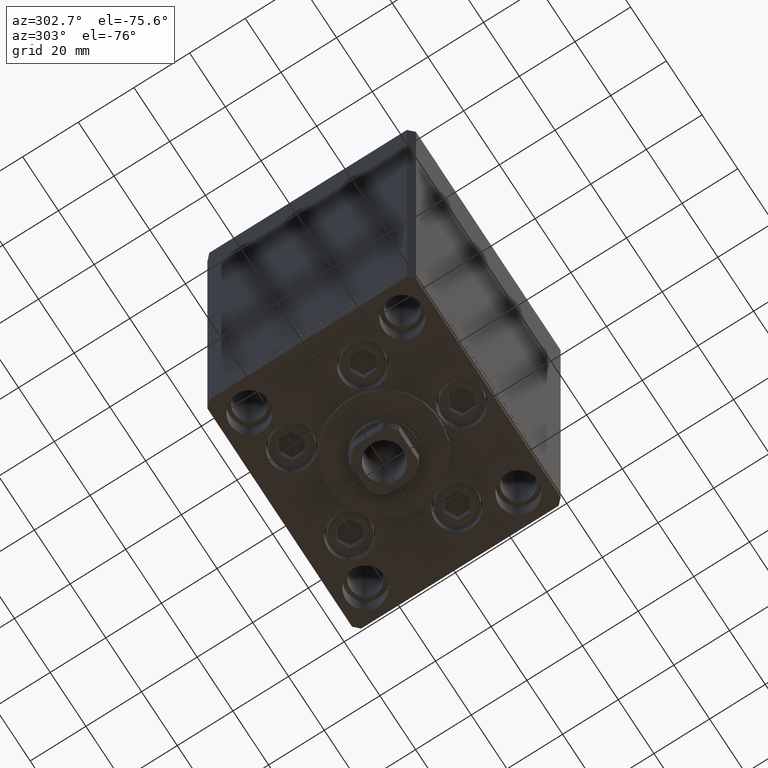
[diagram: clean part render]
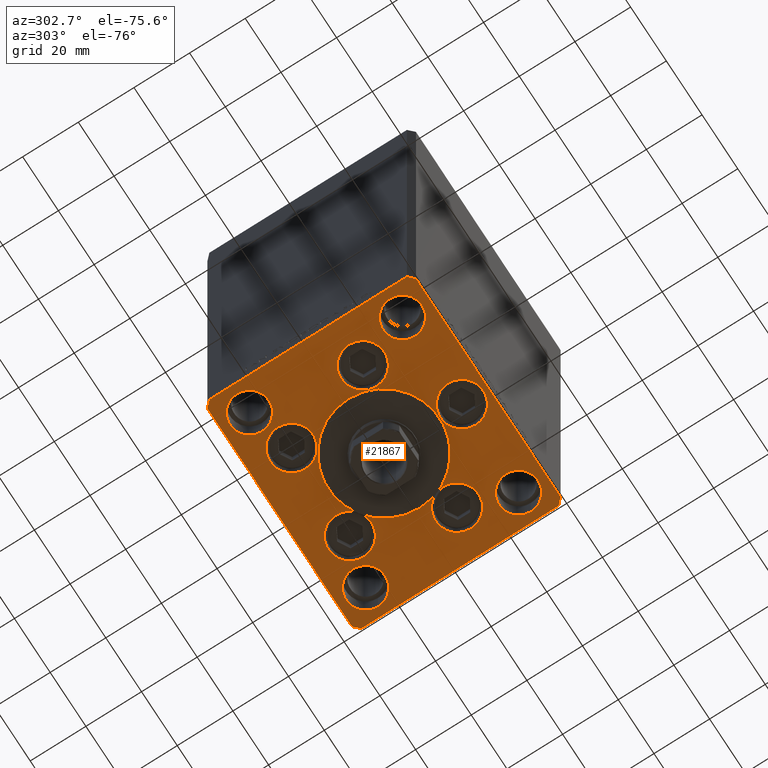
[diagram: same view with one face highlighted and labeled with its STEP entity id]
A machine part, auxiliary view. The second image highlights one B-rep face of the part: STEP entity #21867.
In plain terms, the highlighted planar face has unit normal (0, 0, -1).
Its self-contained STEP definition (entity closure, byte-faithful):
#103 = DIRECTION ( 'NONE',  ( 0.000000000000000000, 0.000000000000000000, 1.000000000000000000 ) ) ;
#386 = ORIENTED_EDGE ( 'NONE', *, *, #36667, .T. ) ;
#412 = CARTESIAN_POINT ( 'NONE',  ( -32.50000000000000000, -27.50000000000000355, 0.000000000000000000 ) ) ;
#703 = VERTEX_POINT ( 'NONE', #33173 ) ;
#747 = FACE_BOUND ( 'NONE', #41973, .T. ) ;
#998 = CARTESIAN_POINT ( 'NONE',  ( 0.000000000000000000, 0.000000000000000000, 0.000000000000000000 ) ) ;
#1865 = CARTESIAN_POINT ( 'NONE',  ( 40.50000000000001421, -37.49999999999992184, 0.000000000000000000 ) ) ;
#2924 = DIRECTION ( 'NONE',  ( 0.000000000000000000, 0.000000000000000000, 1.000000000000000000 ) ) ;
#2979 = DIRECTION ( 'NONE',  ( 0.000000000000000000, 0.000000000000000000, 1.000000000000000000 ) ) ;
#3377 = ORIENTED_EDGE ( 'NONE', *, *, #39702, .F. ) ;
#3508 = CARTESIAN_POINT ( 'NONE',  ( 25.50000000000000355, 27.49999999999999645, 0.000000000000000000 ) ) ;
#3516 = EDGE_LOOP ( 'NONE', ( #47037, #14021 ) ) ;
#3780 = EDGE_CURVE ( 'NONE', #25718, #703, #20379, .T. ) ;
#3985 = DIRECTION ( 'NONE',  ( 0.000000000000000000, 0.000000000000000000, 1.000000000000000000 ) ) ;
#4073 = AXIS2_PLACEMENT_3D ( 'NONE', #40962, #13769, #26114 ) ;
#4242 = DIRECTION ( 'NONE',  ( 1.000000000000000000, 0.000000000000000000, 0.000000000000000000 ) ) ;
#4563 = ORIENTED_EDGE ( 'NONE', *, *, #8620, .F. ) ;
#4695 = DIRECTION ( 'NONE',  ( -0.000000000000000000, 0.000000000000000000, 1.000000000000000000 ) ) ;
#4829 = DIRECTION ( 'NONE',  ( 1.000000000000000000, 0.000000000000000000, 0.000000000000000000 ) ) ;
#4847 = DIRECTION ( 'NONE',  ( 1.000000000000000000, 0.000000000000000000, 0.000000000000000000 ) ) ;
#5054 = CIRCLE ( 'NONE', #30343, 7.750000000000000000 ) ;
#5155 = VECTOR ( 'NONE', #19946, 1000.000000000000000 ) ;
#5263 = CARTESIAN_POINT ( 'NONE',  ( 32.50000000000000000, 27.49999999999999645, 0.000000000000000000 ) ) ;
#5791 = DIRECTION ( 'NONE',  ( 1.000000000000000000, 0.000000000000000000, 0.000000000000000000 ) ) ;
#6054 = VERTEX_POINT ( 'NONE', #3508 ) ;
#6270 = EDGE_CURVE ( 'NONE', #16103, #30489, #36512, .T. ) ;
#6557 = EDGE_LOOP ( 'NONE', ( #13039, #33616 ) ) ;
#6805 = VERTEX_POINT ( 'NONE', #38533 ) ;
#7273 = CARTESIAN_POINT ( 'NONE',  ( 42.50000000000001421, 35.50000000000002132, 0.000000000000000000 ) ) ;
#7840 = CARTESIAN_POINT ( 'NONE',  ( 25.50000000000000355, -27.50000000000000355, 0.000000000000000000 ) ) ;
#7870 = ORIENTED_EDGE ( 'NONE', *, *, #23478, .F. ) ;
#8257 = VERTEX_POINT ( 'NONE', #40187 ) ;
#8268 = AXIS2_PLACEMENT_3D ( 'NONE', #40334, #2979, #37114 ) ;
#8423 = FACE_BOUND ( 'NONE', #13438, .T. ) ;
#8592 = EDGE_LOOP ( 'NONE', ( #16753, #17067 ) ) ;
#8600 = CARTESIAN_POINT ( 'NONE',  ( -25.50000000000000355, -27.50000000000000355, 0.000000000000000000 ) ) ;
#8620 = EDGE_CURVE ( 'NONE', #30489, #16103, #31775, .T. ) ;
#8791 = DIRECTION ( 'NONE',  ( 0.000000000000000000, 0.000000000000000000, 1.000000000000000000 ) ) ;
#8896 = EDGE_CURVE ( 'NONE', #35273, #26124, #43545, .T. ) ;
#8910 = FACE_BOUND ( 'NONE', #44845, .T. ) ;
#9289 = ORIENTED_EDGE ( 'NONE', *, *, #32702, .F. ) ;
#9489 = ORIENTED_EDGE ( 'NONE', *, *, #45274, .F. ) ;
#9556 = VERTEX_POINT ( 'NONE', #14666 ) ;
#9562 = CARTESIAN_POINT ( 'NONE',  ( 0.000000000000000000, -28.00000000000000000, 0.000000000000000000 ) ) ;
#9773 = LINE ( 'NONE', #1865, #39296 ) ;
#10086 = EDGE_LOOP ( 'NONE', ( #7870, #9289 ) ) ;
#10348 = CARTESIAN_POINT ( 'NONE',  ( 16.32291334290544071, 22.74999999999999289, 0.000000000000000000 ) ) ;
#10361 = VERTEX_POINT ( 'NONE', #15281 ) ;
#10518 = CARTESIAN_POINT ( 'NONE',  ( -26.39865316429777664, -9.333333333333330373, 0.000000000000000000 ) ) ;
#10703 = ORIENTED_EDGE ( 'NONE', *, *, #34741, .F. ) ;
#11047 = EDGE_LOOP ( 'NONE', ( #12650, #29749, #386, #21279, #28253, #30860, #33496, #48407 ) ) ;
#11092 = AXIS2_PLACEMENT_3D ( 'NONE', #16916, #16666, #5791 ) ;
#11352 = CARTESIAN_POINT ( 'NONE',  ( -42.50000000000000711, 35.50000000000000000, 0.000000000000000000 ) ) ;
#11353 = VERTEX_POINT ( 'NONE', #39012 ) ;
#11699 = EDGE_CURVE ( 'NONE', #27220, #24272, #41108, .T. ) ;
#11788 = CARTESIAN_POINT ( 'NONE',  ( 18.64865316429777664, -9.333333333333328596, 0.000000000000000000 ) ) ;
#11900 = CIRCLE ( 'NONE', #39554, 7.750000000000000000 ) ;
#12321 = DIRECTION ( 'NONE',  ( 1.000000000000000000, 0.000000000000000000, 0.000000000000000000 ) ) ;
#12558 = ORIENTED_EDGE ( 'NONE', *, *, #42595, .F. ) ;
#12650 = ORIENTED_EDGE ( 'NONE', *, *, #3780, .T. ) ;
#13039 = ORIENTED_EDGE ( 'NONE', *, *, #13921, .F. ) ;
#13333 = EDGE_CURVE ( 'NONE', #42582, #6805, #26848, .T. ) ;
#13438 = EDGE_LOOP ( 'NONE', ( #9489, #3377 ) ) ;
#13488 = AXIS2_PLACEMENT_3D ( 'NONE', #10348, #2924, #41754 ) ;
#13631 = CARTESIAN_POINT ( 'NONE',  ( -18.64865316429777664, -9.333333333333330373, 0.000000000000000000 ) ) ;
#13664 = DIRECTION ( 'NONE',  ( 0.000000000000000000, 0.000000000000000000, 1.000000000000000000 ) ) ;
#13769 = DIRECTION ( 'NONE',  ( 0.000000000000000000, 0.000000000000000000, 1.000000000000000000 ) ) ;
#13921 = EDGE_CURVE ( 'NONE', #24272, #27220, #39479, .T. ) ;
#13930 = VERTEX_POINT ( 'NONE', #18832 ) ;
#14021 = ORIENTED_EDGE ( 'NONE', *, *, #15079, .F. ) ;
#14530 = DIRECTION ( 'NONE',  ( 0.000000000000000000, 0.000000000000000000, 1.000000000000000000 ) ) ;
#14538 = LINE ( 'NONE', #41244, #17394 ) ;
#14553 = AXIS2_PLACEMENT_3D ( 'NONE', #29508, #25553, #44613 ) ;
#14584 = CARTESIAN_POINT ( 'NONE',  ( -16.32291334290544071, 22.74999999999999289, 0.000000000000000000 ) ) ;
#14666 = CARTESIAN_POINT ( 'NONE',  ( -34.14865316429777664, -9.333333333333328596, 0.000000000000000000 ) ) ;
#14811 = DIRECTION ( 'NONE',  ( 9.773090005503134168E-17, -1.000000000000000000, 0.000000000000000000 ) ) ;
#15079 = EDGE_CURVE ( 'NONE', #8257, #15090, #26881, .T. ) ;
#15090 = VERTEX_POINT ( 'NONE', #8600 ) ;
#15281 = CARTESIAN_POINT ( 'NONE',  ( 7.750000000000000000, -28.00000000000000000, 0.000000000000000000 ) ) ;
#15306 = LINE ( 'NONE', #11352, #22706 ) ;
#15332 = EDGE_CURVE ( 'NONE', #13930, #10361, #34782, .T. ) ;
#15409 = CARTESIAN_POINT ( 'NONE',  ( -42.50000000000000000, -35.50000000000004263, 0.000000000000000000 ) ) ;
#15424 = EDGE_CURVE ( 'NONE', #47428, #43186, #38767, .T. ) ;
#15505 = CARTESIAN_POINT ( 'NONE',  ( 40.50000000000001421, -37.49999999999992184, 0.000000000000000000 ) ) ;
#15828 = FACE_BOUND ( 'NONE', #27879, .T. ) ;
#16103 = VERTEX_POINT ( 'NONE', #36941 ) ;
#16115 = EDGE_CURVE ( 'NONE', #27305, #32666, #11900, .T. ) ;
#16320 = FACE_BOUND ( 'NONE', #3516, .T. ) ;
#16666 = DIRECTION ( 'NONE',  ( 0.000000000000000000, 0.000000000000000000, 1.000000000000000000 ) ) ;
#16753 = ORIENTED_EDGE ( 'NONE', *, *, #28716, .F. ) ;
#16916 = CARTESIAN_POINT ( 'NONE',  ( 32.50000000000000000, -27.50000000000000355, 0.000000000000000000 ) ) ;
#17067 = ORIENTED_EDGE ( 'NONE', *, *, #40223, .F. ) ;
#17182 = DIRECTION ( 'NONE',  ( 0.7071067811865474617, 0.7071067811865474617, 0.000000000000000000 ) ) ;
#17394 = VECTOR ( 'NONE', #22197, 1000.000000000000000 ) ;
#17479 = CARTESIAN_POINT ( 'NONE',  ( -25.50000000000000355, 27.50000000000000711, 0.000000000000000000 ) ) ;
#17958 = CARTESIAN_POINT ( 'NONE',  ( 20.00000000000000000, -4.489600305612522259E-15, 0.000000000000000000 ) ) ;
#18127 = CARTESIAN_POINT ( 'NONE',  ( 26.39865316429777664, -9.333333333333330373, 0.000000000000000000 ) ) ;
#18182 = AXIS2_PLACEMENT_3D ( 'NONE', #32083, #47189, #12321 ) ;
#18183 = CIRCLE ( 'NONE', #32417, 6.999999999999999112 ) ;
#18424 = LINE ( 'NONE', #29815, #21042 ) ;
#18463 = VECTOR ( 'NONE', #21892, 1000.000000000000000 ) ;
#18637 = CIRCLE ( 'NONE', #20217, 7.750000000000000000 ) ;
#18832 = CARTESIAN_POINT ( 'NONE',  ( -7.750000000000000000, -28.00000000000000000, 0.000000000000000000 ) ) ;
#18916 = DIRECTION ( 'NONE',  ( -1.000000000000000000, -4.283267841918041508E-16, 0.000000000000000000 ) ) ;
#18928 = AXIS2_PLACEMENT_3D ( 'NONE', #46648, #8791, #4829 ) ;
#19778 = DIRECTION ( 'NONE',  ( 1.000000000000000000, 0.000000000000000000, 0.000000000000000000 ) ) ;
#19946 = DIRECTION ( 'NONE',  ( 9.773090005503145261E-17, 1.000000000000000000, 0.000000000000000000 ) ) ;
#20027 = FACE_OUTER_BOUND ( 'NONE', #11047, .T. ) ;
#20217 = AXIS2_PLACEMENT_3D ( 'NONE', #41980, #22928, #4847 ) ;
#20379 = LINE ( 'NONE', #31774, #32479 ) ;
#20802 = VERTEX_POINT ( 'NONE', #13631 ) ;
#21042 = VECTOR ( 'NONE', #18916, 1000.000000000000000 ) ;
#21279 = ORIENTED_EDGE ( 'NONE', *, *, #30526, .T. ) ;
#21712 = DIRECTION ( 'NONE',  ( 1.000000000000000000, 0.000000000000000000, 0.000000000000000000 ) ) ;
#21716 = CARTESIAN_POINT ( 'NONE',  ( 34.14865316429777664, -9.333333333333330373, 0.000000000000000000 ) ) ;
#21867 = ADVANCED_FACE ( 'NONE', ( #15828, #34639, #8910, #747, #46038, #42326, #8423, #37867, #16320, #38594, #20027 ), #42567, .T. ) ;
#21892 = DIRECTION ( 'NONE',  ( 1.000000000000000000, 1.370645709413773283E-15, 0.000000000000000000 ) ) ;
#22055 = DIRECTION ( 'NONE',  ( 0.000000000000000000, 0.000000000000000000, 1.000000000000000000 ) ) ;
#22197 = DIRECTION ( 'NONE',  ( -0.7071067811865524577, 0.7071067811865426878, 0.000000000000000000 ) ) ;
#22439 = VERTEX_POINT ( 'NONE', #17479 ) ;
#22706 = VECTOR ( 'NONE', #14811, 1000.000000000000000 ) ;
#22928 = DIRECTION ( 'NONE',  ( 0.000000000000000000, 0.000000000000000000, 1.000000000000000000 ) ) ;
#23478 = EDGE_CURVE ( 'NONE', #20802, #9556, #5054, .T. ) ;
#23939 = ORIENTED_EDGE ( 'NONE', *, *, #15332, .F. ) ;
#24272 = VERTEX_POINT ( 'NONE', #28397 ) ;
#24656 = DIRECTION ( 'NONE',  ( 0.000000000000000000, 0.000000000000000000, 1.000000000000000000 ) ) ;
#24704 = CARTESIAN_POINT ( 'NONE',  ( 0.000000000000000000, -28.00000000000000000, 0.000000000000000000 ) ) ;
#25467 = AXIS2_PLACEMENT_3D ( 'NONE', #14584, #26697, #48961 ) ;
#25553 = DIRECTION ( 'NONE',  ( 0.000000000000000000, 0.000000000000000000, 1.000000000000000000 ) ) ;
#25718 = VERTEX_POINT ( 'NONE', #15409 ) ;
#25980 = CIRCLE ( 'NONE', #34665, 6.999999999999999112 ) ;
#26114 = DIRECTION ( 'NONE',  ( 1.000000000000000000, 0.000000000000000000, 0.000000000000000000 ) ) ;
#26124 = VERTEX_POINT ( 'NONE', #46939 ) ;
#26499 = EDGE_CURVE ( 'NONE', #15090, #8257, #47724, .T. ) ;
#26549 = DIRECTION ( 'NONE',  ( 1.000000000000000000, 0.000000000000000000, 0.000000000000000000 ) ) ;
#26697 = DIRECTION ( 'NONE',  ( 0.000000000000000000, 0.000000000000000000, 1.000000000000000000 ) ) ;
#26724 = VERTEX_POINT ( 'NONE', #7273 ) ;
#26738 = CARTESIAN_POINT ( 'NONE',  ( -40.50000000000000000, 37.49999999999997158, 0.000000000000000000 ) ) ;
#26848 = CIRCLE ( 'NONE', #18928, 20.00000000000000000 ) ;
#26881 = CIRCLE ( 'NONE', #18182, 6.999999999999999112 ) ;
#27190 = CIRCLE ( 'NONE', #14553, 6.999999999999999112 ) ;
#27220 = VERTEX_POINT ( 'NONE', #7840 ) ;
#27305 = VERTEX_POINT ( 'NONE', #11788 ) ;
#27868 = CARTESIAN_POINT ( 'NONE',  ( -24.07291334290544071, 22.74999999999999289, 0.000000000000000000 ) ) ;
#27879 = EDGE_LOOP ( 'NONE', ( #36039, #37646 ) ) ;
#28253 = ORIENTED_EDGE ( 'NONE', *, *, #41010, .T. ) ;
#28397 = CARTESIAN_POINT ( 'NONE',  ( 39.50000000000000000, -27.50000000000000355, 0.000000000000000000 ) ) ;
#28716 = EDGE_CURVE ( 'NONE', #22439, #41878, #27190, .T. ) ;
#29016 = EDGE_CURVE ( 'NONE', #6805, #42582, #35910, .T. ) ;
#29508 = CARTESIAN_POINT ( 'NONE',  ( -32.50000000000000000, 27.50000000000000711, 0.000000000000000000 ) ) ;
#29568 = CARTESIAN_POINT ( 'NONE',  ( -40.50000000000000711, -37.50000000000003553, 0.000000000000000000 ) ) ;
#29699 = DIRECTION ( 'NONE',  ( 0.000000000000000000, 0.000000000000000000, 1.000000000000000000 ) ) ;
#29749 = ORIENTED_EDGE ( 'NONE', *, *, #48041, .T. ) ;
#29815 = CARTESIAN_POINT ( 'NONE',  ( 40.50000000000000711, 37.50000000000000711, 0.000000000000000000 ) ) ;
#30174 = CARTESIAN_POINT ( 'NONE',  ( 40.50000000000000711, 37.50000000000000711, 0.000000000000000000 ) ) ;
#30343 = AXIS2_PLACEMENT_3D ( 'NONE', #10518, #44899, #40204 ) ;
#30472 = CARTESIAN_POINT ( 'NONE',  ( 32.50000000000000000, -27.50000000000000355, 0.000000000000000000 ) ) ;
#30489 = VERTEX_POINT ( 'NONE', #27868 ) ;
#30526 = EDGE_CURVE ( 'NONE', #45983, #26724, #43449, .T. ) ;
#30860 = ORIENTED_EDGE ( 'NONE', *, *, #33914, .T. ) ;
#31518 = CARTESIAN_POINT ( 'NONE',  ( 42.50000000000000711, -35.49999999999992895, 0.000000000000000000 ) ) ;
#31774 = CARTESIAN_POINT ( 'NONE',  ( -42.50000000000000000, -35.50000000000004263, 0.000000000000000000 ) ) ;
#31775 = CIRCLE ( 'NONE', #36509, 7.750000000000000000 ) ;
#32083 = CARTESIAN_POINT ( 'NONE',  ( -32.50000000000000000, -27.50000000000000355, 0.000000000000000000 ) ) ;
#32308 = EDGE_LOOP ( 'NONE', ( #36701, #4563 ) ) ;
#32416 = AXIS2_PLACEMENT_3D ( 'NONE', #24704, #47230, #47717 ) ;
#32417 = AXIS2_PLACEMENT_3D ( 'NONE', #40264, #14530, #21712 ) ;
#32479 = VECTOR ( 'NONE', #43398, 1000.000000000000000 ) ;
#32556 = CIRCLE ( 'NONE', #42849, 6.999999999999999112 ) ;
#32628 = AXIS2_PLACEMENT_3D ( 'NONE', #998, #4695, #19778 ) ;
#32666 = VERTEX_POINT ( 'NONE', #21716 ) ;
#32702 = EDGE_CURVE ( 'NONE', #9556, #20802, #18637, .T. ) ;
#32936 = AXIS2_PLACEMENT_3D ( 'NONE', #9562, #24656, #39747 ) ;
#33173 = CARTESIAN_POINT ( 'NONE',  ( -40.50000000000000711, -37.50000000000003553, 0.000000000000000000 ) ) ;
#33220 = DIRECTION ( 'NONE',  ( 0.000000000000000000, 0.000000000000000000, 1.000000000000000000 ) ) ;
#33304 = VERTEX_POINT ( 'NONE', #30174 ) ;
#33496 = ORIENTED_EDGE ( 'NONE', *, *, #8896, .T. ) ;
#33616 = ORIENTED_EDGE ( 'NONE', *, *, #11699, .F. ) ;
#33760 = LINE ( 'NONE', #29568, #18463 ) ;
#33914 = EDGE_CURVE ( 'NONE', #33304, #35273, #18424, .T. ) ;
#34140 = VECTOR ( 'NONE', #36606, 1000.000000000000000 ) ;
#34168 = DIRECTION ( 'NONE',  ( 1.000000000000000000, 0.000000000000000000, 0.000000000000000000 ) ) ;
#34639 = FACE_BOUND ( 'NONE', #32308, .T. ) ;
#34665 = AXIS2_PLACEMENT_3D ( 'NONE', #5263, #13664, #40133 ) ;
#34741 = EDGE_CURVE ( 'NONE', #10361, #13930, #47968, .T. ) ;
#34782 = CIRCLE ( 'NONE', #32416, 7.750000000000000000 ) ;
#35273 = VERTEX_POINT ( 'NONE', #26738 ) ;
#35405 = AXIS2_PLACEMENT_3D ( 'NONE', #37706, #103, #37213 ) ;
#35541 = EDGE_LOOP ( 'NONE', ( #10703, #23939 ) ) ;
#35910 = CIRCLE ( 'NONE', #8268, 20.00000000000000000 ) ;
#36039 = ORIENTED_EDGE ( 'NONE', *, *, #29016, .F. ) ;
#36263 = EDGE_CURVE ( 'NONE', #26124, #25718, #15306, .T. ) ;
#36346 = ORIENTED_EDGE ( 'NONE', *, *, #15424, .F. ) ;
#36509 = AXIS2_PLACEMENT_3D ( 'NONE', #41838, #3985, #34168 ) ;
#36512 = CIRCLE ( 'NONE', #25467, 7.750000000000000000 ) ;
#36606 = DIRECTION ( 'NONE',  ( -0.7071067811865536790, -0.7071067811865414665, 0.000000000000000000 ) ) ;
#36667 = EDGE_CURVE ( 'NONE', #47867, #45983, #9773, .T. ) ;
#36701 = ORIENTED_EDGE ( 'NONE', *, *, #6270, .F. ) ;
#36818 = CARTESIAN_POINT ( 'NONE',  ( -39.50000000000000000, 27.50000000000000711, 0.000000000000000000 ) ) ;
#36941 = CARTESIAN_POINT ( 'NONE',  ( -8.572913342905440715, 22.74999999999999289, 0.000000000000000000 ) ) ;
#37114 = DIRECTION ( 'NONE',  ( 1.000000000000000000, 0.000000000000000000, 0.000000000000000000 ) ) ;
#37213 = DIRECTION ( 'NONE',  ( 1.000000000000000000, 0.000000000000000000, 0.000000000000000000 ) ) ;
#37646 = ORIENTED_EDGE ( 'NONE', *, *, #13333, .F. ) ;
#37706 = CARTESIAN_POINT ( 'NONE',  ( 16.32291334290544071, 22.74999999999999289, 0.000000000000000000 ) ) ;
#37867 = FACE_BOUND ( 'NONE', #8592, .T. ) ;
#38382 = EDGE_CURVE ( 'NONE', #43186, #47428, #41747, .T. ) ;
#38533 = CARTESIAN_POINT ( 'NONE',  ( -20.00000000000000000, -6.938893903907228378E-15, 0.000000000000000000 ) ) ;
#38594 = FACE_BOUND ( 'NONE', #6557, .T. ) ;
#38700 = AXIS2_PLACEMENT_3D ( 'NONE', #30472, #22055, #4242 ) ;
#38767 = CIRCLE ( 'NONE', #13488, 7.750000000000000000 ) ;
#39012 = CARTESIAN_POINT ( 'NONE',  ( 39.50000000000000000, 27.49999999999999645, 0.000000000000000000 ) ) ;
#39296 = VECTOR ( 'NONE', #17182, 1000.000000000000114 ) ;
#39479 = CIRCLE ( 'NONE', #38700, 6.999999999999999112 ) ;
#39554 = AXIS2_PLACEMENT_3D ( 'NONE', #18127, #33220, #26549 ) ;
#39702 = EDGE_CURVE ( 'NONE', #6054, #11353, #25980, .T. ) ;
#39747 = DIRECTION ( 'NONE',  ( 1.000000000000000000, 0.000000000000000000, 0.000000000000000000 ) ) ;
#40133 = DIRECTION ( 'NONE',  ( 1.000000000000000000, 0.000000000000000000, 0.000000000000000000 ) ) ;
#40187 = CARTESIAN_POINT ( 'NONE',  ( -39.50000000000000000, -27.50000000000000355, 0.000000000000000000 ) ) ;
#40204 = DIRECTION ( 'NONE',  ( 1.000000000000000000, 0.000000000000000000, 0.000000000000000000 ) ) ;
#40223 = EDGE_CURVE ( 'NONE', #41878, #22439, #18183, .T. ) ;
#40264 = CARTESIAN_POINT ( 'NONE',  ( -32.50000000000000000, 27.50000000000000711, 0.000000000000000000 ) ) ;
#40334 = CARTESIAN_POINT ( 'NONE',  ( 0.000000000000000000, -6.938893903907228378E-15, 0.000000000000000000 ) ) ;
#40962 = CARTESIAN_POINT ( 'NONE',  ( 26.39865316429777664, -9.333333333333330373, 0.000000000000000000 ) ) ;
#41010 = EDGE_CURVE ( 'NONE', #26724, #33304, #14538, .T. ) ;
#41108 = CIRCLE ( 'NONE', #11092, 6.999999999999999112 ) ;
#41244 = CARTESIAN_POINT ( 'NONE',  ( 42.50000000000001421, 35.50000000000002132, 0.000000000000000000 ) ) ;
#41721 = DIRECTION ( 'NONE',  ( 0.000000000000000000, 0.000000000000000000, 1.000000000000000000 ) ) ;
#41747 = CIRCLE ( 'NONE', #35405, 7.750000000000000000 ) ;
#41754 = DIRECTION ( 'NONE',  ( 1.000000000000000000, 0.000000000000000000, 0.000000000000000000 ) ) ;
#41838 = CARTESIAN_POINT ( 'NONE',  ( -16.32291334290544071, 22.74999999999999289, 0.000000000000000000 ) ) ;
#41878 = VERTEX_POINT ( 'NONE', #36818 ) ;
#41973 = EDGE_LOOP ( 'NONE', ( #12558, #45729 ) ) ;
#41980 = CARTESIAN_POINT ( 'NONE',  ( -26.39865316429777664, -9.333333333333330373, 0.000000000000000000 ) ) ;
#42326 = FACE_BOUND ( 'NONE', #10086, .T. ) ;
#42451 = DIRECTION ( 'NONE',  ( 1.000000000000000000, 0.000000000000000000, 0.000000000000000000 ) ) ;
#42567 = PLANE ( 'NONE',  #32628 ) ;
#42582 = VERTEX_POINT ( 'NONE', #17958 ) ;
#42595 = EDGE_CURVE ( 'NONE', #32666, #27305, #44375, .T. ) ;
#42724 = CARTESIAN_POINT ( 'NONE',  ( 42.50000000000000711, -35.49999999999992895, 0.000000000000000000 ) ) ;
#42849 = AXIS2_PLACEMENT_3D ( 'NONE', #44305, #29699, #44554 ) ;
#43186 = VERTEX_POINT ( 'NONE', #47982 ) ;
#43398 = DIRECTION ( 'NONE',  ( 0.7071067811865487940, -0.7071067811865463515, 0.000000000000000000 ) ) ;
#43449 = LINE ( 'NONE', #42724, #5155 ) ;
#43545 = LINE ( 'NONE', #47261, #34140 ) ;
#44305 = CARTESIAN_POINT ( 'NONE',  ( 32.50000000000000000, 27.49999999999999645, 0.000000000000000000 ) ) ;
#44375 = CIRCLE ( 'NONE', #4073, 7.750000000000000000 ) ;
#44554 = DIRECTION ( 'NONE',  ( 1.000000000000000000, 0.000000000000000000, 0.000000000000000000 ) ) ;
#44613 = DIRECTION ( 'NONE',  ( 1.000000000000000000, 0.000000000000000000, 0.000000000000000000 ) ) ;
#44845 = EDGE_LOOP ( 'NONE', ( #36346, #48332 ) ) ;
#44899 = DIRECTION ( 'NONE',  ( 0.000000000000000000, 0.000000000000000000, 1.000000000000000000 ) ) ;
#45274 = EDGE_CURVE ( 'NONE', #11353, #6054, #32556, .T. ) ;
#45729 = ORIENTED_EDGE ( 'NONE', *, *, #16115, .F. ) ;
#45983 = VERTEX_POINT ( 'NONE', #31518 ) ;
#46038 = FACE_BOUND ( 'NONE', #35541, .T. ) ;
#46648 = CARTESIAN_POINT ( 'NONE',  ( 0.000000000000000000, -6.938893903907228378E-15, 0.000000000000000000 ) ) ;
#46939 = CARTESIAN_POINT ( 'NONE',  ( -42.50000000000000711, 35.50000000000000000, 0.000000000000000000 ) ) ;
#47037 = ORIENTED_EDGE ( 'NONE', *, *, #26499, .F. ) ;
#47189 = DIRECTION ( 'NONE',  ( 0.000000000000000000, 0.000000000000000000, 1.000000000000000000 ) ) ;
#47230 = DIRECTION ( 'NONE',  ( 0.000000000000000000, 0.000000000000000000, 1.000000000000000000 ) ) ;
#47261 = CARTESIAN_POINT ( 'NONE',  ( -40.50000000000000000, 37.49999999999997158, 0.000000000000000000 ) ) ;
#47428 = VERTEX_POINT ( 'NONE', #47661 ) ;
#47661 = CARTESIAN_POINT ( 'NONE',  ( 24.07291334290544071, 22.74999999999999289, 0.000000000000000000 ) ) ;
#47717 = DIRECTION ( 'NONE',  ( 1.000000000000000000, 0.000000000000000000, 0.000000000000000000 ) ) ;
#47724 = CIRCLE ( 'NONE', #48494, 6.999999999999999112 ) ;
#47867 = VERTEX_POINT ( 'NONE', #15505 ) ;
#47968 = CIRCLE ( 'NONE', #32936, 7.750000000000000000 ) ;
#47982 = CARTESIAN_POINT ( 'NONE',  ( 8.572913342905442491, 22.74999999999999289, 0.000000000000000000 ) ) ;
#48041 = EDGE_CURVE ( 'NONE', #703, #47867, #33760, .T. ) ;
#48332 = ORIENTED_EDGE ( 'NONE', *, *, #38382, .F. ) ;
#48407 = ORIENTED_EDGE ( 'NONE', *, *, #36263, .T. ) ;
#48494 = AXIS2_PLACEMENT_3D ( 'NONE', #412, #41721, #42451 ) ;
#48961 = DIRECTION ( 'NONE',  ( 1.000000000000000000, 0.000000000000000000, 0.000000000000000000 ) ) ;